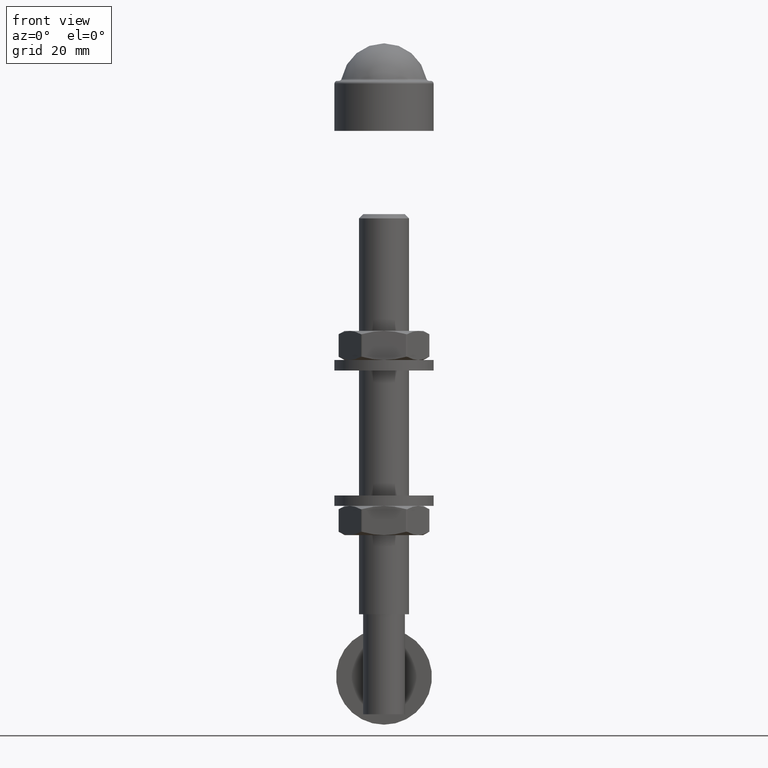
[diagram: clean part render]
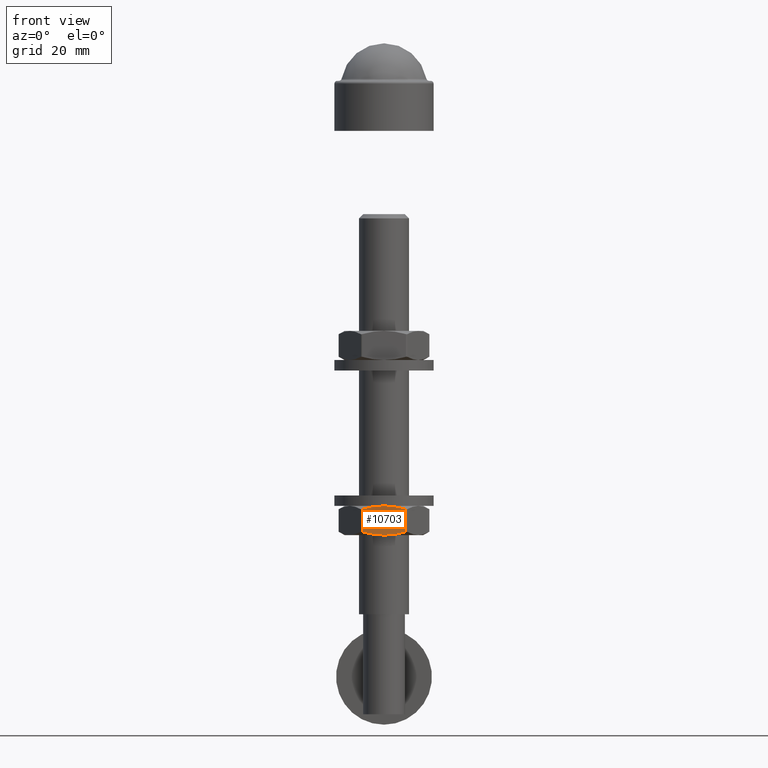
[diagram: same view with one face highlighted and labeled with its STEP entity id]
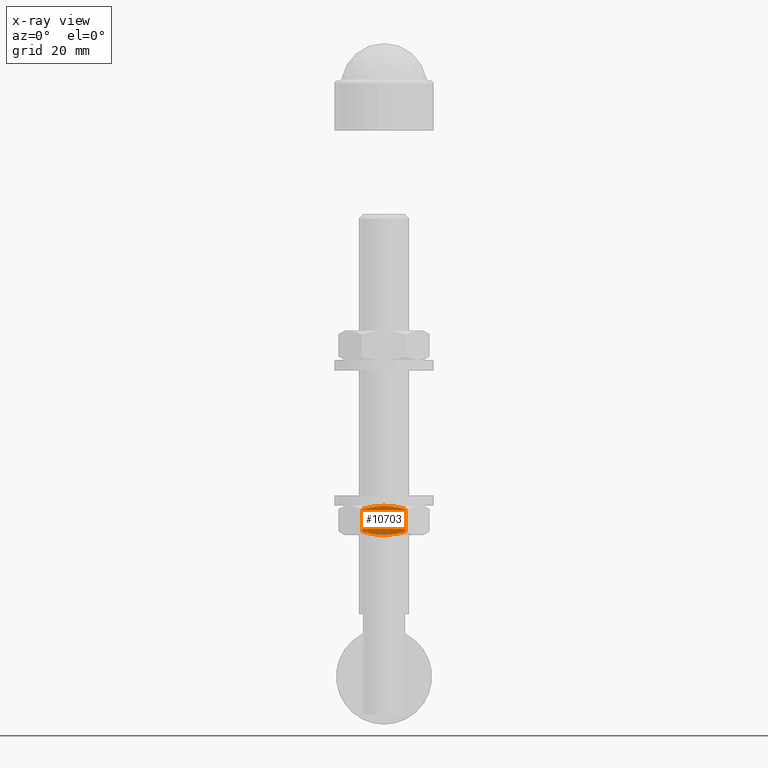
[diagram: x-ray of the same camera — body ghosted, the highlighted face saturated]
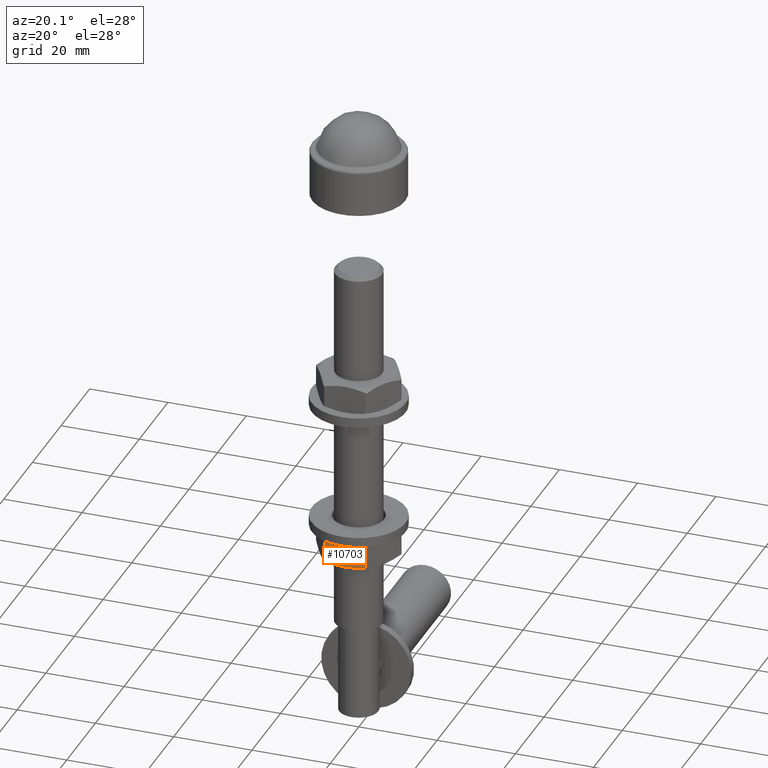
[diagram: same view with one face highlighted and labeled with its STEP entity id]
A machine part, front view. The second image highlights one B-rep face of the part: STEP entity #10703.
The next image is the same camera in x-ray: the body ghosted, the highlighted face saturated — about 0% of this face is hidden behind the body in this view.
A second angle (auxiliary view) of the same face is appended — the face is thin or edge-on in the first view.
In plain terms, the highlighted planar face has unit normal (0, 1, 0).
Its self-contained STEP definition (entity closure, byte-faithful):
#117 = CARTESIAN_POINT ( 'NONE',  ( -4.348666152671945895, 2.967960792442867923, 9.499999999999998224 ) ) ;
#279 = CARTESIAN_POINT ( 'NONE',  ( -1.748548221912491263, 3.428786257910812818, 9.499999999999998224 ) ) ;
#384 = DIRECTION ( 'NONE',  ( -1.000000000000000000, 0.000000000000000000, -0.000000000000000000 ) ) ;
#1259 = ORIENTED_EDGE ( 'NONE', *, *, #9794, .T. ) ;
#1332 = ORIENTED_EDGE ( 'NONE', *, *, #2683, .T. ) ;
#1483 = B_SPLINE_CURVE_WITH_KNOTS ( 'NONE', 3,
 ( #9826, #7620, #279, #8828, #117, #1503 ),
 .UNSPECIFIED., .F., .F.,
 ( 4, 2, 4 ),
 ( 0.009558317508500460691, 0.01217662311715557617, 0.01479492872581069166 ),
 .UNSPECIFIED. ) ;
#1503 = CARTESIAN_POINT ( 'NONE',  ( -5.196152422707281282, 2.733161112797591663, 9.499999999999998224 ) ) ;
#1866 = VERTEX_POINT ( 'NONE', #9607 ) ;
#2145 = CARTESIAN_POINT ( 'NONE',  ( 0.4385791114193136608, -3.499999999999999556, 9.499999999999998224 ) ) ;
#2286 = CARTESIAN_POINT ( 'NONE',  ( 5.196152422706634688, 3.500000000000000000, 9.499999999999998224 ) ) ;
#2300 = CARTESIAN_POINT ( 'NONE',  ( 0.8784862103107686782, -3.482381200358126705, 9.499999999999998224 ) ) ;
#2683 = EDGE_CURVE ( 'NONE', #3514, #15503, #8024, .T. ) ;
#2778 = VERTEX_POINT ( 'NONE', #13816 ) ;
#3014 = CARTESIAN_POINT ( 'NONE',  ( -4.348666152671945007, -2.967960792442868367, 9.499999999999998224 ) ) ;
#3063 = CARTESIAN_POINT ( 'NONE',  ( -3.482435840627227996, -3.163065989375616116, 9.499999999999998224 ) ) ;
#3225 = VECTOR ( 'NONE', #7437, 1000.000000000000000 ) ;
#3514 = VERTEX_POINT ( 'NONE', #4730 ) ;
#3558 = CARTESIAN_POINT ( 'NONE',  ( 5.196152422706635576, 2.733161112797770631, 9.499999999999998224 ) ) ;
#3996 = ORIENTED_EDGE ( 'NONE', *, *, #5374, .T. ) ;
#4232 = DIRECTION ( 'NONE',  ( 0.000000000000000000, 0.000000000000000000, -1.000000000000000000 ) ) ;
#4598 = VERTEX_POINT ( 'NONE', #3558 ) ;
#4730 = CARTESIAN_POINT ( 'NONE',  ( -5.196152422707281282, 2.733161112797591663, 9.499999999999998224 ) ) ;
#4752 = CARTESIAN_POINT ( 'NONE',  ( 3.502637132481564830, -3.159066489143095957, 9.499999999999998224 ) ) ;
#4948 = CARTESIAN_POINT ( 'NONE',  ( -5.196152422706629359, 3.500000000000000000, 9.499999999999998224 ) ) ;
#4970 = PLANE ( 'NONE',  #15103 ) ;
#5010 = ORIENTED_EDGE ( 'NONE', *, *, #7315, .T. ) ;
#5374 = EDGE_CURVE ( 'NONE', #9209, #2778, #7951, .T. ) ;
#6953 = LINE ( 'NONE', #2286, #15502 ) ;
#6975 = CARTESIAN_POINT ( 'NONE',  ( 5.196152422706635576, 2.733161112797770631, 9.499999999999998224 ) ) ;
#7033 = CARTESIAN_POINT ( 'NONE',  ( 0.4385791114193143825, 3.499999999999999112, 9.499999999999998224 ) ) ;
#7084 = CARTESIAN_POINT ( 'NONE',  ( 1.760928236677268943, 3.412279427820716915, 9.499999999999998224 ) ) ;
#7315 = EDGE_CURVE ( 'NONE', #15503, #9209, #11707, .T. ) ;
#7437 = DIRECTION ( 'NONE',  ( 0.000000000000000000, -1.000000000000000000, 0.000000000000000000 ) ) ;
#7620 = CARTESIAN_POINT ( 'NONE',  ( -0.8769579191401467577, 3.500000000000000444, 9.499999999999998224 ) ) ;
#7790 = CARTESIAN_POINT ( 'NONE',  ( -0.8769579191401473128, -3.500000000000000000, 9.499999999999998224 ) ) ;
#7895 = CARTESIAN_POINT ( 'NONE',  ( -1.748548221912489264, -3.428786257910812374, 9.499999999999996447 ) ) ;
#7950 = CARTESIAN_POINT ( 'NONE',  ( -5.196152422707281282, -2.733161112797591663, 9.499999999999998224 ) ) ;
#7951 = B_SPLINE_CURVE_WITH_KNOTS ( 'NONE', 3,
 ( #15474, #2145, #2300, #8251, #9408, #4752, #14362, #8400 ),
 .UNSPECIFIED., .F., .F.,
 ( 4, 2, 2, 4 ),
 ( 0.01533434628928726992, 0.01664715435547534442, 0.01795996242166341544, 0.02058557855403956444 ),
 .UNSPECIFIED. ) ;
#8024 = LINE ( 'NONE', #4948, #3225 ) ;
#8137 = EDGE_CURVE ( 'NONE', #4598, #1866, #11921, .T. ) ;
#8251 = CARTESIAN_POINT ( 'NONE',  ( 1.760928236677267611, -3.412279427820713806, 9.499999999999994671 ) ) ;
#8400 = CARTESIAN_POINT ( 'NONE',  ( 5.196152422706635576, -2.733161112797770631, 9.499999999999998224 ) ) ;
#8828 = CARTESIAN_POINT ( 'NONE',  ( -3.482435840627228885, 3.163065989375613452, 9.499999999999996447 ) ) ;
#9209 = VERTEX_POINT ( 'NONE', #9511 ) ;
#9408 = CARTESIAN_POINT ( 'NONE',  ( 2.200295668405328975, -3.359992646379000636, 9.499999999999998224 ) ) ;
#9511 = CARTESIAN_POINT ( 'NONE',  ( 0.000000000000000000, -3.500000000000000000, 9.499999999999998224 ) ) ;
#9606 = ORIENTED_EDGE ( 'NONE', *, *, #10660, .T. ) ;
#9607 = CARTESIAN_POINT ( 'NONE',  ( 0.000000000000000000, 3.500000000000000000, 9.499999999999998224 ) ) ;
#9794 = EDGE_CURVE ( 'NONE', #2778, #4598, #6953, .T. ) ;
#9826 = CARTESIAN_POINT ( 'NONE',  ( 0.000000000000000000, 3.500000000000000000, 9.499999999999998224 ) ) ;
#10145 = CARTESIAN_POINT ( 'NONE',  ( -5.484827557301442447, 3.500000000000000000, 9.499999999999998224 ) ) ;
#10569 = CARTESIAN_POINT ( 'NONE',  ( 2.200295668405331195, 3.359992646379001524, 9.500000000000001776 ) ) ;
#10624 = CARTESIAN_POINT ( 'NONE',  ( 4.354865280869852917, 2.966243297580163141, 9.499999999999998224 ) ) ;
#10629 = EDGE_LOOP ( 'NONE', ( #3996, #1259, #11202, #9606, #1332, #5010 ) ) ;
#10660 = EDGE_CURVE ( 'NONE', #1866, #3514, #1483, .T. ) ;
#10703 = ADVANCED_FACE ( 'NONE', ( #14897 ), #4970, .F. ) ;
#11202 = ORIENTED_EDGE ( 'NONE', *, *, #8137, .T. ) ;
#11707 = B_SPLINE_CURVE_WITH_KNOTS ( 'NONE', 3,
 ( #7950, #3014, #3063, #7895, #7790, #15104 ),
 .UNSPECIFIED., .F., .F.,
 ( 4, 2, 4 ),
 ( 0.01008431317107068466, 0.01270932973017897816, 0.01533434628928726992 ),
 .UNSPECIFIED. ) ;
#11805 = CARTESIAN_POINT ( 'NONE',  ( 0.8784862103107694553, 3.482381200358126705, 9.500000000000000000 ) ) ;
#11921 = B_SPLINE_CURVE_WITH_KNOTS ( 'NONE', 3,
 ( #6975, #10624, #15521, #10569, #7084, #11805, #7033, #15574 ),
 .UNSPECIFIED., .F., .F.,
 ( 4, 2, 2, 4 ),
 ( 0.004320510210316323013, 0.006939413859408391852, 0.008248865683954425404, 0.009558317508500460691 ),
 .UNSPECIFIED. ) ;
#13816 = CARTESIAN_POINT ( 'NONE',  ( 5.196152422706635576, -2.733161112797770631, 9.499999999999998224 ) ) ;
#14362 = CARTESIAN_POINT ( 'NONE',  ( 4.354865280869853805, -2.966243297580165361, 9.500000000000000000 ) ) ;
#14835 = CARTESIAN_POINT ( 'NONE',  ( -5.196152422707281282, -2.733161112797591663, 9.499999999999998224 ) ) ;
#14897 = FACE_OUTER_BOUND ( 'NONE', #10629, .T. ) ;
#15103 = AXIS2_PLACEMENT_3D ( 'NONE', #10145, #4232, #384 ) ;
#15104 = CARTESIAN_POINT ( 'NONE',  ( 0.000000000000000000, -3.500000000000000000, 9.499999999999998224 ) ) ;
#15474 = CARTESIAN_POINT ( 'NONE',  ( 0.000000000000000000, -3.500000000000000000, 9.499999999999998224 ) ) ;
#15502 = VECTOR ( 'NONE', #15717, 1000.000000000000000 ) ;
#15503 = VERTEX_POINT ( 'NONE', #14835 ) ;
#15521 = CARTESIAN_POINT ( 'NONE',  ( 3.502637132481564386, 3.159066489143095069, 9.499999999999996447 ) ) ;
#15574 = CARTESIAN_POINT ( 'NONE',  ( 0.000000000000000000, 3.500000000000000000, 9.499999999999998224 ) ) ;
#15717 = DIRECTION ( 'NONE',  ( -0.000000000000000000, 1.000000000000000000, -0.000000000000000000 ) ) ;